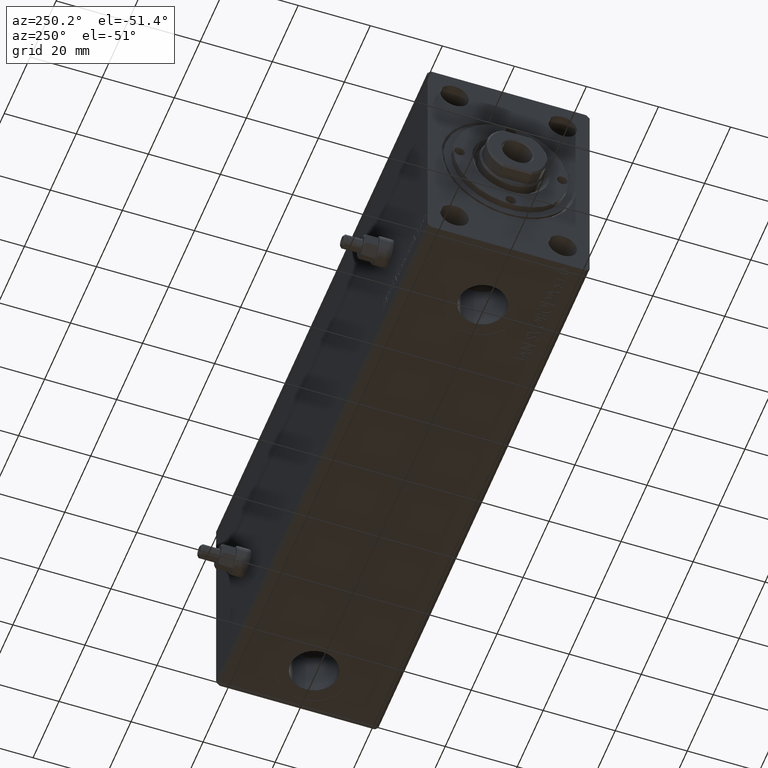
[diagram: clean part render]
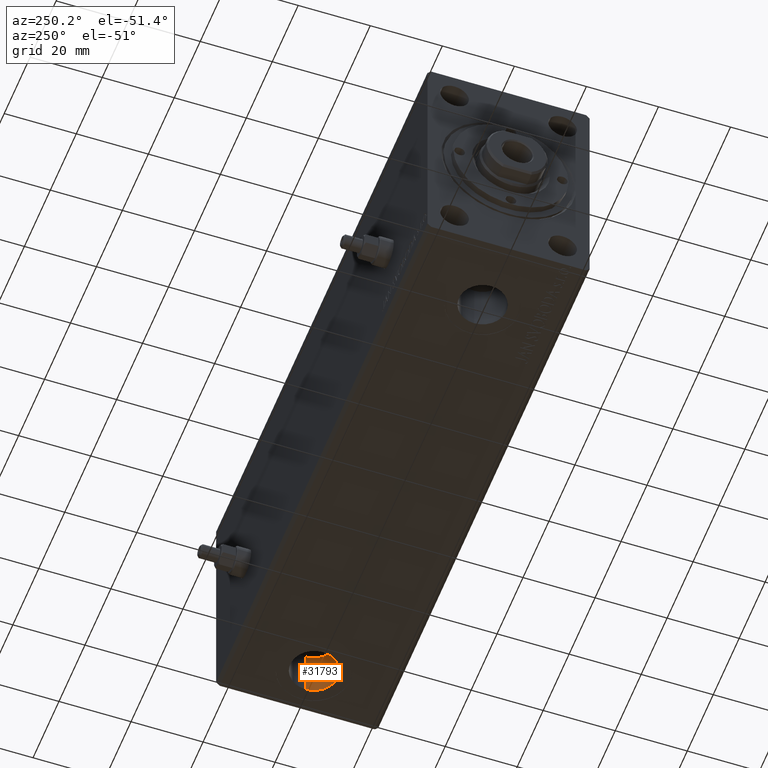
[diagram: same view with one face highlighted and labeled with its STEP entity id]
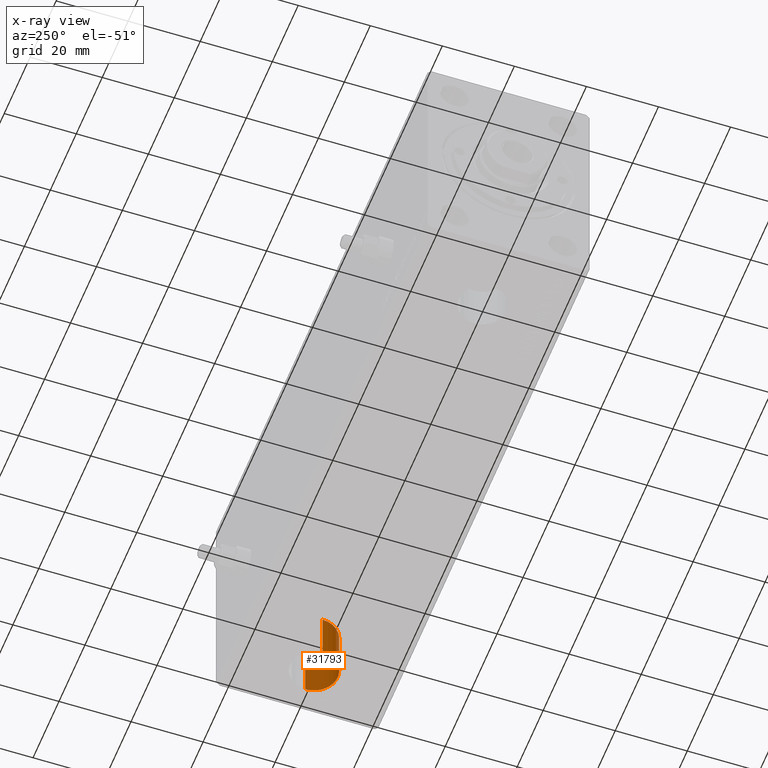
[diagram: x-ray of the same camera — body ghosted, the highlighted face saturated]
A machine part, auxiliary view. The second image highlights one B-rep face of the part: STEP entity #31793.
The next image is the same camera in x-ray: the body ghosted, the highlighted face saturated — about 0% of this face is hidden behind the body in this view.
In plain terms, the highlighted cylindrical surface (edge-blend (fillet) strip) has radius 6.58 mm, axis along (-0, -0, -1).
Its self-contained STEP definition (entity closure, byte-faithful):
#479 = VERTEX_POINT ( 'NONE', #11803 ) ;
#2452 = DIRECTION ( 'NONE',  ( -0.000000000000000000, -0.000000000000000000, -1.000000000000000000 ) ) ;
#7566 = VECTOR ( 'NONE', #2452, 1000.000000000000000 ) ;
#7657 = VERTEX_POINT ( 'NONE', #21572 ) ;
#8398 = AXIS2_PLACEMENT_3D ( 'NONE', #13329, #35008, #27490 ) ;
#10587 = CIRCLE ( 'NONE', #8398, 6.580000000000002736 ) ;
#11803 = CARTESIAN_POINT ( 'NONE',  ( 156.5799999999999557, -1.129690433158062189E-14, -32.39999999999999858 ) ) ;
#13329 = CARTESIAN_POINT ( 'NONE',  ( 149.9999999999999716, -1.210272192541958409E-14, -18.79999999999999716 ) ) ;
#15285 = ORIENTED_EDGE ( 'NONE', *, *, #32047, .T. ) ;
#16243 = VERTEX_POINT ( 'NONE', #31292 ) ;
#17041 = EDGE_CURVE ( 'NONE', #36930, #7657, #36264, .T. ) ;
#17183 = CARTESIAN_POINT ( 'NONE',  ( 149.9999999999999716, -1.210272192541958409E-14, -32.39999999999999858 ) ) ;
#18331 = CIRCLE ( 'NONE', #43885, 6.580000000000002736 ) ;
#20527 = EDGE_CURVE ( 'NONE', #16243, #36930, #10587, .T. ) ;
#21243 = LINE ( 'NONE', #38597, #37097 ) ;
#21572 = CARTESIAN_POINT ( 'NONE',  ( 143.4199999999999591, -1.210272192541958409E-14, -32.39999999999999858 ) ) ;
#22071 = EDGE_LOOP ( 'NONE', ( #42198, #30077, #15285, #42669 ) ) ;
#23871 = DIRECTION ( 'NONE',  ( -0.000000000000000000, -0.000000000000000000, -1.000000000000000000 ) ) ;
#24094 = CYLINDRICAL_SURFACE ( 'NONE', #27123, 6.580000000000002736 ) ;
#27123 = AXIS2_PLACEMENT_3D ( 'NONE', #28193, #23871, #37796 ) ;
#27490 = DIRECTION ( 'NONE',  ( -1.000000000000000000, 0.000000000000000000, 0.000000000000000000 ) ) ;
#27971 = FACE_OUTER_BOUND ( 'NONE', #22071, .T. ) ;
#28193 = CARTESIAN_POINT ( 'NONE',  ( 149.9999999999999716, -1.210272192541958409E-14, -18.79999999999999716 ) ) ;
#30077 = ORIENTED_EDGE ( 'NONE', *, *, #30869, .T. ) ;
#30869 = EDGE_CURVE ( 'NONE', #16243, #479, #21243, .T. ) ;
#31292 = CARTESIAN_POINT ( 'NONE',  ( 156.5799999999999557, -1.129690433158062189E-14, -18.79999999999999716 ) ) ;
#31793 = ADVANCED_FACE ( 'NONE', ( #27971 ), #24094, .F. ) ;
#32047 = EDGE_CURVE ( 'NONE', #479, #7657, #18331, .T. ) ;
#34337 = DIRECTION ( 'NONE',  ( -1.000000000000000000, 0.000000000000000000, 0.000000000000000000 ) ) ;
#34754 = DIRECTION ( 'NONE',  ( -0.000000000000000000, -0.000000000000000000, -1.000000000000000000 ) ) ;
#35008 = DIRECTION ( 'NONE',  ( 0.000000000000000000, 0.000000000000000000, -1.000000000000000000 ) ) ;
#36264 = LINE ( 'NONE', #40600, #7566 ) ;
#36930 = VERTEX_POINT ( 'NONE', #39506 ) ;
#37097 = VECTOR ( 'NONE', #34754, 1000.000000000000000 ) ;
#37796 = DIRECTION ( 'NONE',  ( -1.000000000000000000, 0.000000000000000000, 0.000000000000000000 ) ) ;
#38597 = CARTESIAN_POINT ( 'NONE',  ( 156.5799999999999557, -1.129690433158062347E-14, -18.79999999999999716 ) ) ;
#39506 = CARTESIAN_POINT ( 'NONE',  ( 143.4199999999999591, -1.210272192541958409E-14, -18.79999999999999716 ) ) ;
#40600 = CARTESIAN_POINT ( 'NONE',  ( 143.4199999999999591, -1.210272192541958409E-14, -18.79999999999999716 ) ) ;
#41399 = DIRECTION ( 'NONE',  ( 0.000000000000000000, 0.000000000000000000, -1.000000000000000000 ) ) ;
#42198 = ORIENTED_EDGE ( 'NONE', *, *, #20527, .F. ) ;
#42669 = ORIENTED_EDGE ( 'NONE', *, *, #17041, .F. ) ;
#43885 = AXIS2_PLACEMENT_3D ( 'NONE', #17183, #41399, #34337 ) ;